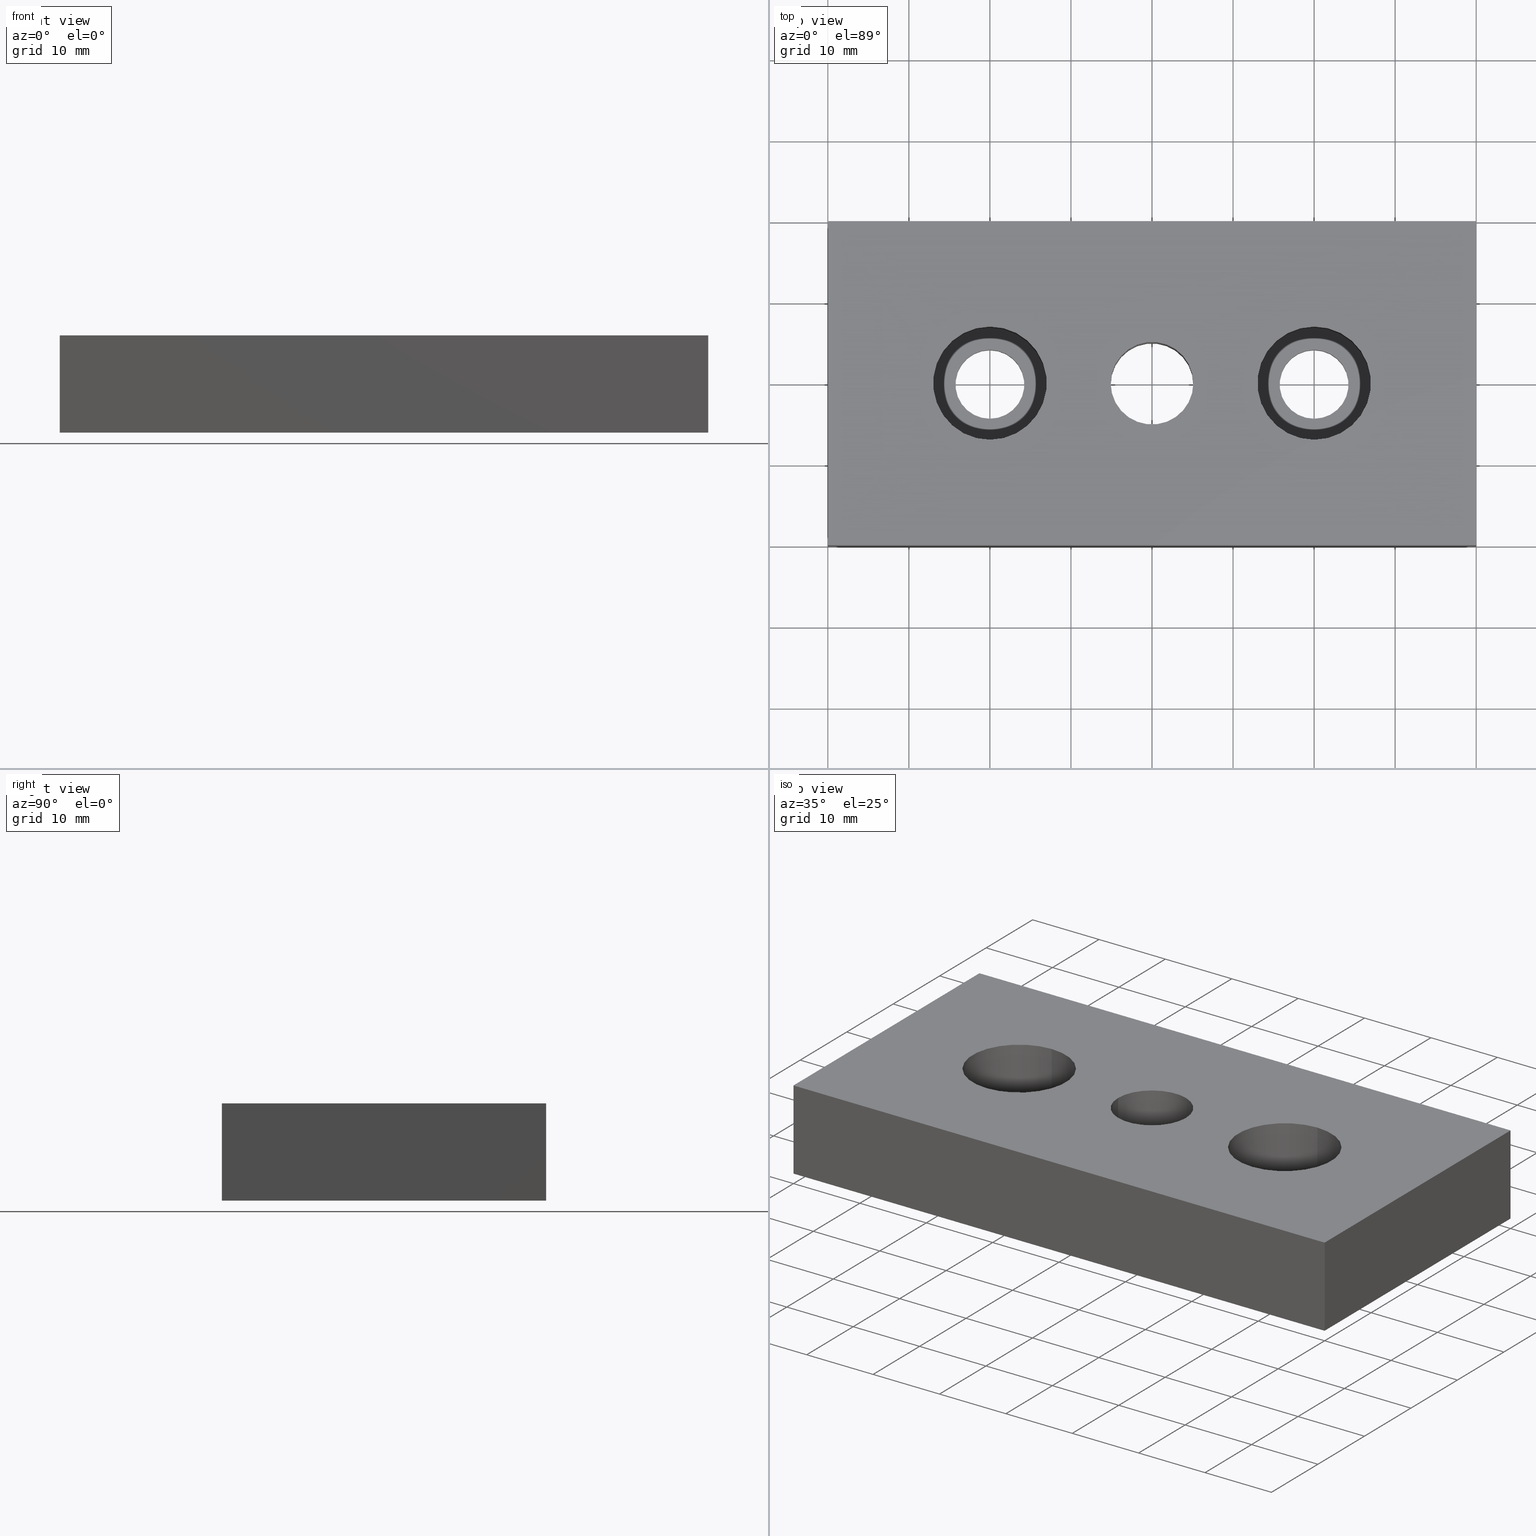
[diagram: canonical four-view strip — front | top / right | iso, engineering-drawing reading convention]
A machine part, canonical four-view strip (front | top / right | iso — engineering-drawing reading convention). The complete STEP part file that produces these views, byte-faithful:
ISO-10303-21;
HEADER;
/****************************************************************
 * Generated by software with PDE/Lib inside                    *
 * PDElib Version v4.4, created Mon 02/23/2004                  *
 * International Technegroup Inc. (www.iti-oh.com)              *
 ****************************************************************/
FILE_DESCRIPTION(('STEP AP203'),'2;1');
FILE_NAME('31.003.00.stp','2011-02-14T10:46:22',(''),(''),'2009.3.110','THINKDESIGN','');
FILE_SCHEMA(('CONFIG_CONTROL_DESIGN'));
ENDSEC;
DATA;
#2=CARTESIAN_POINT('',(-40.0,-7.105427E-015,-9.999994E-009));
#3=DIRECTION('',(0.0,0.0,1.0));
#4=DIRECTION('',(0.0,1.0,0.0));
#5=AXIS2_PLACEMENT_3D('',#2,#3,#4);
#6=CYLINDRICAL_SURFACE('',#5,5.100000000000000);
#7=CARTESIAN_POINT('',(-34.899999999999999,-8.881784E-015,3.552714E-015));
#8=VERTEX_POINT('',#7);
#9=CARTESIAN_POINT('',(-45.099999999999994,-8.881784E-015,3.552714E-015));
#10=VERTEX_POINT('',#9);
#11=CARTESIAN_POINT('',(-40.0,-8.881784E-015,3.552714E-015));
#12=DIRECTION('',(0.0,0.0,-1.0));
#13=DIRECTION('',(-1.0,0.0,0.0));
#14=AXIS2_PLACEMENT_3D('',#11,#12,#13);
#15=CIRCLE('',#14,5.100000000000001);
#16=EDGE_CURVE('',#8,#10,#15,.T.);
#17=ORIENTED_EDGE('',*,*,#16,.T.);
#18=CARTESIAN_POINT('',(-45.099999999999994,-8.881784E-015,12.0));
#19=VERTEX_POINT('',#18);
#20=CARTESIAN_POINT('',(-45.099999999999994,-8.881784E-015,0.0));
#21=DIRECTION('',(0.0,0.0,1.0));
#22=VECTOR('',#21,12.0);
#23=LINE('',#20,#22);
#24=EDGE_CURVE('',#10,#19,#23,.T.);
#25=ORIENTED_EDGE('',*,*,#24,.T.);
#26=CARTESIAN_POINT('',(-34.899999999999999,-8.881784E-015,12.0));
#27=VERTEX_POINT('',#26);
#28=CARTESIAN_POINT('',(-40.0,-8.881784E-015,12.0));
#29=DIRECTION('',(0.0,0.0,1.0));
#30=DIRECTION('',(-1.0,0.0,0.0));
#31=AXIS2_PLACEMENT_3D('',#28,#29,#30);
#32=CIRCLE('',#31,5.100000000000001);
#33=EDGE_CURVE('',#19,#27,#32,.T.);
#34=ORIENTED_EDGE('',*,*,#33,.T.);
#35=CARTESIAN_POINT('',(-34.899999999999999,-8.881784E-015,0.0));
#36=DIRECTION('',(0.0,0.0,1.0));
#37=VECTOR('',#36,12.0);
#38=LINE('',#35,#37);
#39=EDGE_CURVE('',#8,#27,#38,.T.);
#40=ORIENTED_EDGE('',*,*,#39,.F.);
#41=EDGE_LOOP('',(#17,#25,#34,#40));
#42=FACE_OUTER_BOUND('',#41,.T.);
#43=ADVANCED_FACE('',(#42),#6,.F.);
#44=CARTESIAN_POINT('',(-60.0,-8.881784E-015,4.000000010000000));
#45=DIRECTION('',(0.0,0.0,-1.0));
#46=DIRECTION('',(-1.0,0.0,0.0));
#47=AXIS2_PLACEMENT_3D('',#44,#45,#46);
#48=CYLINDRICAL_SURFACE('',#47,4.250000000000000);
#49=CARTESIAN_POINT('',(-60.0,4.249999999999991,4.0));
#50=VERTEX_POINT('',#49);
#51=CARTESIAN_POINT('',(-60.0,-4.250000000000009,4.0));
#52=VERTEX_POINT('',#51);
#53=CARTESIAN_POINT('',(-60.0,-8.881784E-015,4.0));
#54=DIRECTION('',(0.0,0.0,-1.0));
#55=DIRECTION('',(-1.0,0.0,0.0));
#56=AXIS2_PLACEMENT_3D('',#53,#54,#55);
#57=CIRCLE('',#56,4.249999999999997);
#58=EDGE_CURVE('',#50,#52,#57,.T.);
#59=ORIENTED_EDGE('',*,*,#58,.F.);
#60=CARTESIAN_POINT('',(-60.0,4.249999999999991,0.0));
#61=VERTEX_POINT('',#60);
#62=CARTESIAN_POINT('',(-60.0,4.249999999999991,4.0));
#63=DIRECTION('',(0.0,0.0,-1.0));
#64=VECTOR('',#63,4.0);
#65=LINE('',#62,#64);
#66=EDGE_CURVE('',#50,#61,#65,.T.);
#67=ORIENTED_EDGE('',*,*,#66,.T.);
#68=CARTESIAN_POINT('',(-60.0,-4.250000000000009,0.0));
#69=VERTEX_POINT('',#68);
#70=CARTESIAN_POINT('',(-60.0,-8.881784E-015,0.0));
#71=DIRECTION('',(0.0,0.0,-1.0));
#72=DIRECTION('',(-1.0,0.0,0.0));
#73=AXIS2_PLACEMENT_3D('',#70,#71,#72);
#74=CIRCLE('',#73,4.249999999999997);
#75=EDGE_CURVE('',#61,#69,#74,.T.);
#76=ORIENTED_EDGE('',*,*,#75,.T.);
#77=CARTESIAN_POINT('',(-60.0,-4.250000000000009,4.0));
#78=DIRECTION('',(0.0,0.0,-1.0));
#79=VECTOR('',#78,4.0);
#80=LINE('',#77,#79);
#81=EDGE_CURVE('',#52,#69,#80,.T.);
#82=ORIENTED_EDGE('',*,*,#81,.F.);
#83=EDGE_LOOP('',(#59,#67,#76,#82));
#84=FACE_OUTER_BOUND('',#83,.T.);
#85=ADVANCED_FACE('',(#84),#48,.F.);
#86=CARTESIAN_POINT('',(-59.999999999999986,-8.881784E-015,12.000000010000001));
#87=DIRECTION('',(0.0,0.0,-1.0));
#88=DIRECTION('',(-1.0,0.0,0.0));
#89=AXIS2_PLACEMENT_3D('',#86,#87,#88);
#90=CYLINDRICAL_SURFACE('',#89,6.999999999999997);
#91=CARTESIAN_POINT('',(-59.999999999999993,6.999999999999991,12.0));
#92=VERTEX_POINT('',#91);
#93=CARTESIAN_POINT('',(-59.999999999999993,-7.000000000000007,12.0));
#94=VERTEX_POINT('',#93);
#95=CARTESIAN_POINT('',(-59.999999999999993,-8.881784E-015,12.0));
#96=DIRECTION('',(0.0,0.0,-1.0));
#97=DIRECTION('',(0.0,-1.0,0.0));
#98=AXIS2_PLACEMENT_3D('',#95,#96,#97);
#99=CIRCLE('',#98,6.999999999999997);
#100=EDGE_CURVE('',#92,#94,#99,.T.);
#101=ORIENTED_EDGE('',*,*,#100,.F.);
#102=CARTESIAN_POINT('',(-59.999999999999993,6.999999999999991,4.0));
#103=VERTEX_POINT('',#102);
#104=CARTESIAN_POINT('',(-59.999999999999993,6.999999999999991,12.0));
#105=DIRECTION('',(0.0,0.0,-1.0));
#106=VECTOR('',#105,8.0);
#107=LINE('',#104,#106);
#108=EDGE_CURVE('',#92,#103,#107,.T.);
#109=ORIENTED_EDGE('',*,*,#108,.T.);
#110=CARTESIAN_POINT('',(-59.999999999999993,-7.000000000000007,4.0));
#111=VERTEX_POINT('',#110);
#112=CARTESIAN_POINT('',(-59.999999999999993,-8.881784E-015,4.0));
#113=DIRECTION('',(0.0,0.0,1.0));
#114=DIRECTION('',(0.0,-1.0,0.0));
#115=AXIS2_PLACEMENT_3D('',#112,#113,#114);
#116=CIRCLE('',#115,6.999999999999997);
#117=EDGE_CURVE('',#111,#103,#116,.T.);
#118=ORIENTED_EDGE('',*,*,#117,.F.);
#119=CARTESIAN_POINT('',(-59.999999999999993,-7.000000000000007,12.0));
#120=DIRECTION('',(0.0,0.0,-1.0));
#121=VECTOR('',#120,8.0);
#122=LINE('',#119,#121);
#123=EDGE_CURVE('',#94,#111,#122,.T.);
#124=ORIENTED_EDGE('',*,*,#123,.F.);
#125=EDGE_LOOP('',(#101,#109,#118,#124));
#126=FACE_OUTER_BOUND('',#125,.T.);
#127=ADVANCED_FACE('',(#126),#90,.F.);
#128=CARTESIAN_POINT('',(-19.999999999999996,-7.105427E-015,4.000000010000000));
#129=DIRECTION('',(0.0,0.0,-1.0));
#130=DIRECTION('',(-1.0,0.0,0.0));
#131=AXIS2_PLACEMENT_3D('',#128,#129,#130);
#132=CYLINDRICAL_SURFACE('',#131,4.250000000000000);
#133=CARTESIAN_POINT('',(-19.999999999999996,4.249999999999991,4.0));
#134=VERTEX_POINT('',#133);
#135=CARTESIAN_POINT('',(-19.999999999999996,-4.250000000000009,4.0));
#136=VERTEX_POINT('',#135);
#137=CARTESIAN_POINT('',(-19.999999999999996,-8.881784E-015,4.0));
#138=DIRECTION('',(0.0,0.0,-1.0));
#139=DIRECTION('',(-1.0,0.0,0.0));
#140=AXIS2_PLACEMENT_3D('',#137,#138,#139);
#141=CIRCLE('',#140,4.250000000000000);
#142=EDGE_CURVE('',#134,#136,#141,.T.);
#143=ORIENTED_EDGE('',*,*,#142,.F.);
#144=CARTESIAN_POINT('',(-19.999999999999996,4.249999999999991,0.0));
#145=VERTEX_POINT('',#144);
#146=CARTESIAN_POINT('',(-19.999999999999996,4.249999999999991,4.0));
#147=DIRECTION('',(0.0,0.0,-1.0));
#148=VECTOR('',#147,4.0);
#149=LINE('',#146,#148);
#150=EDGE_CURVE('',#134,#145,#149,.T.);
#151=ORIENTED_EDGE('',*,*,#150,.T.);
#152=CARTESIAN_POINT('',(-19.999999999999996,-4.250000000000009,0.0));
#153=VERTEX_POINT('',#152);
#154=CARTESIAN_POINT('',(-19.999999999999996,-8.881784E-015,0.0));
#155=DIRECTION('',(0.0,0.0,-1.0));
#156=DIRECTION('',(-1.0,0.0,0.0));
#157=AXIS2_PLACEMENT_3D('',#154,#155,#156);
#158=CIRCLE('',#157,4.250000000000000);
#159=EDGE_CURVE('',#145,#153,#158,.T.);
#160=ORIENTED_EDGE('',*,*,#159,.T.);
#161=CARTESIAN_POINT('',(-19.999999999999996,-4.250000000000009,4.0));
#162=DIRECTION('',(0.0,0.0,-1.0));
#163=VECTOR('',#162,4.0);
#164=LINE('',#161,#163);
#165=EDGE_CURVE('',#136,#153,#164,.T.);
#166=ORIENTED_EDGE('',*,*,#165,.F.);
#167=EDGE_LOOP('',(#143,#151,#160,#166));
#168=FACE_OUTER_BOUND('',#167,.T.);
#169=ADVANCED_FACE('',(#168),#132,.F.);
#170=CARTESIAN_POINT('',(-19.999999999999996,-7.105427E-015,12.000000010000001));
#171=DIRECTION('',(0.0,0.0,-1.0));
#172=DIRECTION('',(-1.0,0.0,0.0));
#173=AXIS2_PLACEMENT_3D('',#170,#171,#172);
#174=CYLINDRICAL_SURFACE('',#173,6.999999999999997);
#175=CARTESIAN_POINT('',(-19.999999999999996,6.999999999999991,12.0));
#176=VERTEX_POINT('',#175);
#177=CARTESIAN_POINT('',(-19.999999999999996,-7.000000000000007,12.0));
#178=VERTEX_POINT('',#177);
#179=CARTESIAN_POINT('',(-19.999999999999996,-8.881784E-015,12.0));
#180=DIRECTION('',(0.0,0.0,-1.0));
#181=DIRECTION('',(0.0,-1.0,0.0));
#182=AXIS2_PLACEMENT_3D('',#179,#180,#181);
#183=CIRCLE('',#182,6.999999999999997);
#184=EDGE_CURVE('',#176,#178,#183,.T.);
#185=ORIENTED_EDGE('',*,*,#184,.F.);
#186=CARTESIAN_POINT('',(-19.999999999999996,6.999999999999991,4.0));
#187=VERTEX_POINT('',#186);
#188=CARTESIAN_POINT('',(-19.999999999999996,6.999999999999991,12.0));
#189=DIRECTION('',(0.0,0.0,-1.0));
#190=VECTOR('',#189,8.0);
#191=LINE('',#188,#190);
#192=EDGE_CURVE('',#176,#187,#191,.T.);
#193=ORIENTED_EDGE('',*,*,#192,.T.);
#194=CARTESIAN_POINT('',(-19.999999999999996,-7.000000000000007,4.0));
#195=VERTEX_POINT('',#194);
#196=CARTESIAN_POINT('',(-19.999999999999996,-8.881784E-015,4.0));
#197=DIRECTION('',(0.0,0.0,1.0));
#198=DIRECTION('',(0.0,-1.0,0.0));
#199=AXIS2_PLACEMENT_3D('',#196,#197,#198);
#200=CIRCLE('',#199,6.999999999999997);
#201=EDGE_CURVE('',#195,#187,#200,.T.);
#202=ORIENTED_EDGE('',*,*,#201,.F.);
#203=CARTESIAN_POINT('',(-19.999999999999996,-7.000000000000007,12.0));
#204=DIRECTION('',(0.0,0.0,-1.0));
#205=VECTOR('',#204,8.0);
#206=LINE('',#203,#205);
#207=EDGE_CURVE('',#178,#195,#206,.T.);
#208=ORIENTED_EDGE('',*,*,#207,.F.);
#209=EDGE_LOOP('',(#185,#193,#202,#208));
#210=FACE_OUTER_BOUND('',#209,.T.);
#211=ADVANCED_FACE('',(#210),#174,.F.);
#212=CARTESIAN_POINT('',(-80.0,-22.000000000000007,-0.600000000000000));
#213=DIRECTION('',(-1.0,0.0,0.0));
#214=DIRECTION('',(0.0,0.0,1.0));
#215=AXIS2_PLACEMENT_3D('',#212,#213,#214);
#216=PLANE('',#215);
#217=CARTESIAN_POINT('',(-80.0,20.000000000000007,12.0));
#218=VERTEX_POINT('',#217);
#219=CARTESIAN_POINT('',(-80.0,-20.000000000000007,12.0));
#220=VERTEX_POINT('',#219);
#221=CARTESIAN_POINT('',(-80.0,20.000000000000007,12.0));
#222=DIRECTION('',(0.0,-1.0,0.0));
#223=VECTOR('',#222,40.000000000000014);
#224=LINE('',#221,#223);
#225=EDGE_CURVE('',#218,#220,#224,.T.);
#226=ORIENTED_EDGE('',*,*,#225,.F.);
#227=CARTESIAN_POINT('',(-80.0,20.000000000000007,0.0));
#228=VERTEX_POINT('',#227);
#229=CARTESIAN_POINT('',(-80.0,20.000000000000007,0.0));
#230=DIRECTION('',(0.0,0.0,1.0));
#231=VECTOR('',#230,12.0);
#232=LINE('',#229,#231);
#233=EDGE_CURVE('',#228,#218,#232,.T.);
#234=ORIENTED_EDGE('',*,*,#233,.F.);
#235=CARTESIAN_POINT('',(-80.0,-20.000000000000007,0.0));
#236=VERTEX_POINT('',#235);
#237=CARTESIAN_POINT('',(-80.0,20.000000000000007,0.0));
#238=DIRECTION('',(0.0,-1.0,0.0));
#239=VECTOR('',#238,40.000000000000014);
#240=LINE('',#237,#239);
#241=EDGE_CURVE('',#228,#236,#240,.T.);
#242=ORIENTED_EDGE('',*,*,#241,.T.);
#243=CARTESIAN_POINT('',(-80.0,-20.000000000000007,0.0));
#244=DIRECTION('',(0.0,0.0,1.0));
#245=VECTOR('',#244,12.0);
#246=LINE('',#243,#245);
#247=EDGE_CURVE('',#236,#220,#246,.T.);
#248=ORIENTED_EDGE('',*,*,#247,.T.);
#249=EDGE_LOOP('',(#226,#234,#242,#248));
#250=FACE_OUTER_BOUND('',#249,.T.);
#251=ADVANCED_FACE('',(#250),#216,.T.);
#252=CARTESIAN_POINT('',(-84.0,-20.000000000000007,-0.600000000000000));
#253=DIRECTION('',(0.0,-1.0,0.0));
#254=DIRECTION('',(1.0,0.0,0.0));
#255=AXIS2_PLACEMENT_3D('',#252,#253,#254);
#256=PLANE('',#255);
#257=CARTESIAN_POINT('',(7.105427E-015,-20.000000000000004,12.0));
#258=VERTEX_POINT('',#257);
#259=CARTESIAN_POINT('',(-80.0,-20.000000000000007,12.0));
#260=DIRECTION('',(1.0,0.0,0.0));
#261=VECTOR('',#260,80.0);
#262=LINE('',#259,#261);
#263=EDGE_CURVE('',#220,#258,#262,.T.);
#264=ORIENTED_EDGE('',*,*,#263,.F.);
#265=ORIENTED_EDGE('',*,*,#247,.F.);
#266=CARTESIAN_POINT('',(7.105427E-015,-20.000000000000004,0.0));
#267=VERTEX_POINT('',#266);
#268=CARTESIAN_POINT('',(-80.0,-20.000000000000007,0.0));
#269=DIRECTION('',(1.0,0.0,0.0));
#270=VECTOR('',#269,80.0);
#271=LINE('',#268,#270);
#272=EDGE_CURVE('',#236,#267,#271,.T.);
#273=ORIENTED_EDGE('',*,*,#272,.T.);
#274=CARTESIAN_POINT('',(7.105427E-015,-20.000000000000004,0.0));
#275=DIRECTION('',(0.0,0.0,1.0));
#276=VECTOR('',#275,12.0);
#277=LINE('',#274,#276);
#278=EDGE_CURVE('',#267,#258,#277,.T.);
#279=ORIENTED_EDGE('',*,*,#278,.T.);
#280=EDGE_LOOP('',(#264,#265,#273,#279));
#281=FACE_OUTER_BOUND('',#280,.T.);
#282=ADVANCED_FACE('',(#281),#256,.T.);
#283=CARTESIAN_POINT('',(0.0,-22.000000000000004,12.600000000000000));
#284=DIRECTION('',(1.0,0.0,0.0));
#285=DIRECTION('',(0.0,0.0,-1.0));
#286=AXIS2_PLACEMENT_3D('',#283,#284,#285);
#287=PLANE('',#286);
#288=CARTESIAN_POINT('',(0.0,20.000000000000007,12.0));
#289=VERTEX_POINT('',#288);
#290=CARTESIAN_POINT('',(0.0,-20.000000000000004,12.0));
#291=DIRECTION('',(0.0,1.0,0.0));
#292=VECTOR('',#291,40.000000000000007);
#293=LINE('',#290,#292);
#294=EDGE_CURVE('',#258,#289,#293,.T.);
#295=ORIENTED_EDGE('',*,*,#294,.F.);
#296=ORIENTED_EDGE('',*,*,#278,.F.);
#297=CARTESIAN_POINT('',(0.0,20.000000000000007,0.0));
#298=VERTEX_POINT('',#297);
#299=CARTESIAN_POINT('',(0.0,-20.000000000000004,0.0));
#300=DIRECTION('',(0.0,1.0,0.0));
#301=VECTOR('',#300,40.000000000000007);
#302=LINE('',#299,#301);
#303=EDGE_CURVE('',#267,#298,#302,.T.);
#304=ORIENTED_EDGE('',*,*,#303,.T.);
#305=CARTESIAN_POINT('',(0.0,20.000000000000007,0.0));
#306=DIRECTION('',(0.0,0.0,1.0));
#307=VECTOR('',#306,12.0);
#308=LINE('',#305,#307);
#309=EDGE_CURVE('',#298,#289,#308,.T.);
#310=ORIENTED_EDGE('',*,*,#309,.T.);
#311=EDGE_LOOP('',(#295,#296,#304,#310));
#312=FACE_OUTER_BOUND('',#311,.T.);
#313=ADVANCED_FACE('',(#312),#287,.T.);
#314=CARTESIAN_POINT('',(-84.0,20.000000000000007,-0.600000000000000));
#315=DIRECTION('',(0.0,1.0,0.0));
#316=DIRECTION('',(0.0,0.0,1.0));
#317=AXIS2_PLACEMENT_3D('',#314,#315,#316);
#318=PLANE('',#317);
#319=CARTESIAN_POINT('',(0.0,20.000000000000007,12.0));
#320=DIRECTION('',(-1.0,0.0,0.0));
#321=VECTOR('',#320,80.0);
#322=LINE('',#319,#321);
#323=EDGE_CURVE('',#289,#218,#322,.T.);
#324=ORIENTED_EDGE('',*,*,#323,.F.);
#325=ORIENTED_EDGE('',*,*,#309,.F.);
#326=CARTESIAN_POINT('',(0.0,20.000000000000007,0.0));
#327=DIRECTION('',(-1.0,0.0,0.0));
#328=VECTOR('',#327,80.0);
#329=LINE('',#326,#328);
#330=EDGE_CURVE('',#298,#228,#329,.T.);
#331=ORIENTED_EDGE('',*,*,#330,.T.);
#332=ORIENTED_EDGE('',*,*,#233,.T.);
#333=EDGE_LOOP('',(#324,#325,#331,#332));
#334=FACE_OUTER_BOUND('',#333,.T.);
#335=ADVANCED_FACE('',(#334),#318,.T.);
#336=CARTESIAN_POINT('',(4.000000000000004,-22.000000000000007,0.0));
#337=DIRECTION('',(0.0,0.0,-1.0));
#338=DIRECTION('',(-1.0,0.0,0.0));
#339=AXIS2_PLACEMENT_3D('',#336,#337,#338);
#340=PLANE('',#339);
#341=ORIENTED_EDGE('',*,*,#241,.F.);
#342=ORIENTED_EDGE('',*,*,#330,.F.);
#343=ORIENTED_EDGE('',*,*,#303,.F.);
#344=ORIENTED_EDGE('',*,*,#272,.F.);
#345=EDGE_LOOP('',(#341,#342,#343,#344));
#346=FACE_OUTER_BOUND('',#345,.T.);
#347=CARTESIAN_POINT('',(-60.0,-8.881784E-015,0.0));
#348=DIRECTION('',(0.0,0.0,-1.0));
#349=DIRECTION('',(-1.0,0.0,0.0));
#350=AXIS2_PLACEMENT_3D('',#347,#348,#349);
#351=CIRCLE('',#350,4.249999999999997);
#352=EDGE_CURVE('',#69,#61,#351,.T.);
#353=ORIENTED_EDGE('',*,*,#352,.F.);
#354=ORIENTED_EDGE('',*,*,#75,.F.);
#355=EDGE_LOOP('',(#353,#354));
#356=FACE_BOUND('',#355,.T.);
#357=CARTESIAN_POINT('',(-19.999999999999996,-8.881784E-015,0.0));
#358=DIRECTION('',(0.0,0.0,-1.0));
#359=DIRECTION('',(-1.0,0.0,0.0));
#360=AXIS2_PLACEMENT_3D('',#357,#358,#359);
#361=CIRCLE('',#360,4.250000000000000);
#362=EDGE_CURVE('',#153,#145,#361,.T.);
#363=ORIENTED_EDGE('',*,*,#362,.F.);
#364=ORIENTED_EDGE('',*,*,#159,.F.);
#365=EDGE_LOOP('',(#363,#364));
#366=FACE_BOUND('',#365,.T.);
#367=ORIENTED_EDGE('',*,*,#16,.F.);
#368=CARTESIAN_POINT('',(-40.0,-8.881784E-015,3.552714E-015));
#369=DIRECTION('',(0.0,0.0,-1.0));
#370=DIRECTION('',(-1.0,0.0,0.0));
#371=AXIS2_PLACEMENT_3D('',#368,#369,#370);
#372=CIRCLE('',#371,5.100000000000001);
#373=EDGE_CURVE('',#10,#8,#372,.T.);
#374=ORIENTED_EDGE('',*,*,#373,.F.);
#375=EDGE_LOOP('',(#367,#374));
#376=FACE_BOUND('',#375,.T.);
#377=ADVANCED_FACE('',(#346,#356,#366,#376),#340,.T.);
#378=CARTESIAN_POINT('',(4.000000000000004,-22.000000000000007,12.0));
#379=DIRECTION('',(0.0,0.0,-1.0));
#380=DIRECTION('',(-1.0,0.0,0.0));
#381=AXIS2_PLACEMENT_3D('',#378,#379,#380);
#382=PLANE('',#381);
#383=ORIENTED_EDGE('',*,*,#225,.T.);
#384=ORIENTED_EDGE('',*,*,#263,.T.);
#385=ORIENTED_EDGE('',*,*,#294,.T.);
#386=ORIENTED_EDGE('',*,*,#323,.T.);
#387=EDGE_LOOP('',(#383,#384,#385,#386));
#388=FACE_OUTER_BOUND('',#387,.T.);
#389=CARTESIAN_POINT('',(-59.999999999999993,-8.881784E-015,12.0));
#390=DIRECTION('',(0.0,0.0,-1.0));
#391=DIRECTION('',(0.0,-1.0,0.0));
#392=AXIS2_PLACEMENT_3D('',#389,#390,#391);
#393=CIRCLE('',#392,6.999999999999997);
#394=EDGE_CURVE('',#94,#92,#393,.T.);
#395=ORIENTED_EDGE('',*,*,#394,.T.);
#396=ORIENTED_EDGE('',*,*,#100,.T.);
#397=EDGE_LOOP('',(#395,#396));
#398=FACE_BOUND('',#397,.T.);
#399=CARTESIAN_POINT('',(-19.999999999999996,-8.881784E-015,12.0));
#400=DIRECTION('',(0.0,0.0,-1.0));
#401=DIRECTION('',(0.0,-1.0,0.0));
#402=AXIS2_PLACEMENT_3D('',#399,#400,#401);
#403=CIRCLE('',#402,6.999999999999997);
#404=EDGE_CURVE('',#178,#176,#403,.T.);
#405=ORIENTED_EDGE('',*,*,#404,.T.);
#406=ORIENTED_EDGE('',*,*,#184,.T.);
#407=EDGE_LOOP('',(#405,#406));
#408=FACE_BOUND('',#407,.T.);
#409=CARTESIAN_POINT('',(-40.0,-8.881784E-015,12.0));
#410=DIRECTION('',(0.0,0.0,1.0));
#411=DIRECTION('',(-1.0,0.0,0.0));
#412=AXIS2_PLACEMENT_3D('',#409,#410,#411);
#413=CIRCLE('',#412,5.100000000000001);
#414=EDGE_CURVE('',#27,#19,#413,.T.);
#415=ORIENTED_EDGE('',*,*,#414,.F.);
#416=ORIENTED_EDGE('',*,*,#33,.F.);
#417=EDGE_LOOP('',(#415,#416));
#418=FACE_BOUND('',#417,.T.);
#419=ADVANCED_FACE('',(#388,#398,#408,#418),#382,.F.);
#420=CARTESIAN_POINT('',(-12.300000000000001,-7.700000000000008,4.0));
#421=DIRECTION('',(0.0,0.0,-1.0));
#422=DIRECTION('',(-1.0,0.0,0.0));
#423=AXIS2_PLACEMENT_3D('',#420,#421,#422);
#424=PLANE('',#423);
#425=ORIENTED_EDGE('',*,*,#201,.T.);
#426=CARTESIAN_POINT('',(-19.999999999999996,-8.881784E-015,4.0));
#427=DIRECTION('',(0.0,0.0,1.0));
#428=DIRECTION('',(0.0,-1.0,0.0));
#429=AXIS2_PLACEMENT_3D('',#426,#427,#428);
#430=CIRCLE('',#429,6.999999999999997);
#431=EDGE_CURVE('',#187,#195,#430,.T.);
#432=ORIENTED_EDGE('',*,*,#431,.T.);
#433=EDGE_LOOP('',(#425,#432));
#434=FACE_OUTER_BOUND('',#433,.T.);
#435=CARTESIAN_POINT('',(-19.999999999999996,-8.881784E-015,4.0));
#436=DIRECTION('',(0.0,0.0,-1.0));
#437=DIRECTION('',(-1.0,0.0,0.0));
#438=AXIS2_PLACEMENT_3D('',#435,#436,#437);
#439=CIRCLE('',#438,4.250000000000000);
#440=EDGE_CURVE('',#136,#134,#439,.T.);
#441=ORIENTED_EDGE('',*,*,#440,.T.);
#442=ORIENTED_EDGE('',*,*,#142,.T.);
#443=EDGE_LOOP('',(#441,#442));
#444=FACE_BOUND('',#443,.T.);
#445=ADVANCED_FACE('',(#434,#444),#424,.F.);
#446=CARTESIAN_POINT('',(-19.999999999999996,-8.881784E-015,12.000000010000001));
#447=DIRECTION('',(0.0,0.0,-1.0));
#448=DIRECTION('',(1.0,0.0,0.0));
#449=AXIS2_PLACEMENT_3D('',#446,#447,#448);
#450=CYLINDRICAL_SURFACE('',#449,6.999999999999997);
#451=ORIENTED_EDGE('',*,*,#192,.F.);
#452=ORIENTED_EDGE('',*,*,#404,.F.);
#453=ORIENTED_EDGE('',*,*,#207,.T.);
#454=ORIENTED_EDGE('',*,*,#431,.F.);
#455=EDGE_LOOP('',(#451,#452,#453,#454));
#456=FACE_OUTER_BOUND('',#455,.T.);
#457=ADVANCED_FACE('',(#456),#450,.F.);
#458=CARTESIAN_POINT('',(-19.999999999999996,-8.881784E-015,4.000000010000000));
#459=DIRECTION('',(0.0,0.0,-1.0));
#460=DIRECTION('',(1.0,0.0,0.0));
#461=AXIS2_PLACEMENT_3D('',#458,#459,#460);
#462=CYLINDRICAL_SURFACE('',#461,4.250000000000000);
#463=ORIENTED_EDGE('',*,*,#150,.F.);
#464=ORIENTED_EDGE('',*,*,#440,.F.);
#465=ORIENTED_EDGE('',*,*,#165,.T.);
#466=ORIENTED_EDGE('',*,*,#362,.T.);
#467=EDGE_LOOP('',(#463,#464,#465,#466));
#468=FACE_OUTER_BOUND('',#467,.T.);
#469=ADVANCED_FACE('',(#468),#462,.F.);
#470=CARTESIAN_POINT('',(-52.299999999999997,-7.700000000000008,4.0));
#471=DIRECTION('',(0.0,0.0,-1.0));
#472=DIRECTION('',(-1.0,0.0,0.0));
#473=AXIS2_PLACEMENT_3D('',#470,#471,#472);
#474=PLANE('',#473);
#475=ORIENTED_EDGE('',*,*,#117,.T.);
#476=CARTESIAN_POINT('',(-59.999999999999993,-8.881784E-015,4.0));
#477=DIRECTION('',(0.0,0.0,1.0));
#478=DIRECTION('',(0.0,-1.0,0.0));
#479=AXIS2_PLACEMENT_3D('',#476,#477,#478);
#480=CIRCLE('',#479,6.999999999999997);
#481=EDGE_CURVE('',#103,#111,#480,.T.);
#482=ORIENTED_EDGE('',*,*,#481,.T.);
#483=EDGE_LOOP('',(#475,#482));
#484=FACE_OUTER_BOUND('',#483,.T.);
#485=CARTESIAN_POINT('',(-60.0,-8.881784E-015,4.0));
#486=DIRECTION('',(0.0,0.0,-1.0));
#487=DIRECTION('',(-1.0,0.0,0.0));
#488=AXIS2_PLACEMENT_3D('',#485,#486,#487);
#489=CIRCLE('',#488,4.249999999999997);
#490=EDGE_CURVE('',#52,#50,#489,.T.);
#491=ORIENTED_EDGE('',*,*,#490,.T.);
#492=ORIENTED_EDGE('',*,*,#58,.T.);
#493=EDGE_LOOP('',(#491,#492));
#494=FACE_BOUND('',#493,.T.);
#495=ADVANCED_FACE('',(#484,#494),#474,.F.);
#496=CARTESIAN_POINT('',(-59.999999999999993,-5.329071E-015,12.000000010000001));
#497=DIRECTION('',(0.0,0.0,-1.0));
#498=DIRECTION('',(1.0,0.0,0.0));
#499=AXIS2_PLACEMENT_3D('',#496,#497,#498);
#500=CYLINDRICAL_SURFACE('',#499,6.999999999999997);
#501=ORIENTED_EDGE('',*,*,#108,.F.);
#502=ORIENTED_EDGE('',*,*,#394,.F.);
#503=ORIENTED_EDGE('',*,*,#123,.T.);
#504=ORIENTED_EDGE('',*,*,#481,.F.);
#505=EDGE_LOOP('',(#501,#502,#503,#504));
#506=FACE_OUTER_BOUND('',#505,.T.);
#507=ADVANCED_FACE('',(#506),#500,.F.);
#508=CARTESIAN_POINT('',(-60.0,-1.243450E-014,4.000000010000000));
#509=DIRECTION('',(0.0,0.0,-1.0));
#510=DIRECTION('',(1.0,0.0,0.0));
#511=AXIS2_PLACEMENT_3D('',#508,#509,#510);
#512=CYLINDRICAL_SURFACE('',#511,4.250000000000000);
#513=ORIENTED_EDGE('',*,*,#66,.F.);
#514=ORIENTED_EDGE('',*,*,#490,.F.);
#515=ORIENTED_EDGE('',*,*,#81,.T.);
#516=ORIENTED_EDGE('',*,*,#352,.T.);
#517=EDGE_LOOP('',(#513,#514,#515,#516));
#518=FACE_OUTER_BOUND('',#517,.T.);
#519=ADVANCED_FACE('',(#518),#512,.F.);
#520=CARTESIAN_POINT('',(-40.0,-8.881784E-015,-9.999994E-009));
#521=DIRECTION('',(0.0,0.0,1.0));
#522=DIRECTION('',(0.0,-1.0,0.0));
#523=AXIS2_PLACEMENT_3D('',#520,#521,#522);
#524=CYLINDRICAL_SURFACE('',#523,5.100000000000000);
#525=ORIENTED_EDGE('',*,*,#24,.F.);
#526=ORIENTED_EDGE('',*,*,#373,.T.);
#527=ORIENTED_EDGE('',*,*,#39,.T.);
#528=ORIENTED_EDGE('',*,*,#414,.T.);
#529=EDGE_LOOP('',(#525,#526,#527,#528));
#530=FACE_OUTER_BOUND('',#529,.T.);
#531=ADVANCED_FACE('',(#530),#524,.F.);
#532=CLOSED_SHELL('',(#43,#85,#127,#169,#211,#251,#282,#313,#335,#377,#419,#445,#457,#469,#495,#507,#519,#531));
#533=MANIFOLD_SOLID_BREP('Importato1',#532);
#539=(NAMED_UNIT(*)PLANE_ANGLE_UNIT()SI_UNIT($,.RADIAN.));
#540=DIMENSIONAL_EXPONENTS(0.0,0.0,0.0,0.0,0.0,0.0,0.0);
#541=PLANE_ANGLE_MEASURE_WITH_UNIT(PLANE_ANGLE_MEASURE(0.017453292500000),#539);
#545=(CONVERSION_BASED_UNIT('DEGREE',#541)NAMED_UNIT(#540)PLANE_ANGLE_UNIT());
#549=(NAMED_UNIT(*)SI_UNIT($,.STERADIAN.)SOLID_ANGLE_UNIT());
#553=(LENGTH_UNIT()NAMED_UNIT(*)SI_UNIT(.MILLI.,.METRE.));
#555=UNCERTAINTY_MEASURE_WITH_UNIT(LENGTH_MEASURE(0.001000000000000),#553,'DISTANCE_ACCURACY_VALUE','');
#557=(GEOMETRIC_REPRESENTATION_CONTEXT(3)GLOBAL_UNCERTAINTY_ASSIGNED_CONTEXT((#555))GLOBAL_UNIT_ASSIGNED_CONTEXT((#545,#549,#553))REPRESENTATION_CONTEXT('thinkdesign','2009.3.110'));
#558=ADVANCED_BREP_SHAPE_REPRESENTATION('',(#533),#557);
#559=APPLICATION_CONTEXT('configuration controlled 3D designs of mechanical parts and assemblies');
#560=APPLICATION_PROTOCOL_DEFINITION('International Standard','config_control_design',1995,#559);
#561=MECHANICAL_CONTEXT('None',#559,'mechanical');
#562=PRODUCT('None','None','None',(#561));
#563=PRODUCT_RELATED_PRODUCT_CATEGORY('detail',$,(#562));
#564=PRODUCT_CATEGORY('part',$);
#565=PRODUCT_CATEGORY_RELATIONSHIP('None','None',#564,#563);
#566=PERSON('PERSON1','None','None',$,$,$);
#567=ORGANIZATION('','None','None');
#568=PERSON_AND_ORGANIZATION(#566,#567);
#569=PERSON_AND_ORGANIZATION_ROLE('design_owner');
#570=CC_DESIGN_PERSON_AND_ORGANIZATION_ASSIGNMENT(#568,#569,(#562));
#571=PRODUCT_DEFINITION_FORMATION_WITH_SPECIFIED_SOURCE('None','None',#562,.NOT_KNOWN.);
#572=PERSON('PERSON2','None','None',$,$,$);
#573=ORGANIZATION('','None','None');
#574=PERSON_AND_ORGANIZATION(#572,#573);
#575=PERSON_AND_ORGANIZATION_ROLE('creator');
#576=CC_DESIGN_PERSON_AND_ORGANIZATION_ASSIGNMENT(#574,#575,(#571));
#577=PERSON('PERSON3','None','None',$,$,$);
#578=ORGANIZATION('','None','None');
#579=PERSON_AND_ORGANIZATION(#577,#578);
#580=PERSON_AND_ORGANIZATION_ROLE('part_supplier');
#581=CC_DESIGN_PERSON_AND_ORGANIZATION_ASSIGNMENT(#579,#580,(#571));
#582=APPROVAL_STATUS('approved');
#583=APPROVAL(#582,'None');
#584=PERSON('PERSON4','None','None',$,$,$);
#585=ORGANIZATION('','None','None');
#586=PERSON_AND_ORGANIZATION(#584,#585);
#587=APPROVAL_ROLE('None');
#588=APPROVAL_PERSON_ORGANIZATION(#586,#583,#587);
#589=CALENDAR_DATE(2011,14,2);
#590=COORDINATED_UNIVERSAL_TIME_OFFSET(0,0,.AHEAD.);
#591=LOCAL_TIME(10,46,22.0,#590);
#592=DATE_AND_TIME(#589,#591);
#593=APPROVAL_DATE_TIME(#592,#583);
#594=CC_DESIGN_APPROVAL(#583,(#571));
#595=SECURITY_CLASSIFICATION_LEVEL('unclassified');
#596=SECURITY_CLASSIFICATION('None','None',#595);
#597=CC_DESIGN_SECURITY_CLASSIFICATION(#596,(#571));
#598=APPROVAL_STATUS('approved');
#599=APPROVAL(#598,'None');
#600=PERSON('PERSON5','None','None',$,$,$);
#601=ORGANIZATION('','None','None');
#602=PERSON_AND_ORGANIZATION(#600,#601);
#603=APPROVAL_ROLE('None');
#604=APPROVAL_PERSON_ORGANIZATION(#602,#599,#603);
#605=CALENDAR_DATE(2011,14,2);
#606=COORDINATED_UNIVERSAL_TIME_OFFSET(0,0,.AHEAD.);
#607=LOCAL_TIME(10,46,22.0,#606);
#608=DATE_AND_TIME(#605,#607);
#609=APPROVAL_DATE_TIME(#608,#599);
#610=CC_DESIGN_APPROVAL(#599,(#596));
#611=PERSON('PERSON6','None','None',$,$,$);
#612=ORGANIZATION('','None','None');
#613=PERSON_AND_ORGANIZATION(#611,#612);
#614=PERSON_AND_ORGANIZATION_ROLE('classification_officer');
#615=CC_DESIGN_PERSON_AND_ORGANIZATION_ASSIGNMENT(#613,#614,(#596));
#616=DATE_TIME_ROLE('classification_date');
#617=CALENDAR_DATE(2011,14,2);
#618=COORDINATED_UNIVERSAL_TIME_OFFSET(0,0,.AHEAD.);
#619=LOCAL_TIME(10,46,22.0,#618);
#620=DATE_AND_TIME(#617,#619);
#621=CC_DESIGN_DATE_AND_TIME_ASSIGNMENT(#620,#616,(#596));
#622=DESIGN_CONTEXT('part definition',#559,'design');
#623=DOCUMENT_TYPE('cad_filename');
#624=DOCUMENT('None','None','None',#623);
#625=PRODUCT_DEFINITION_WITH_ASSOCIATED_DOCUMENTS('None','None',#571,#622,(#624));
#626=PERSON('PERSON7','None','None',$,$,$);
#627=ORGANIZATION('','None','None');
#628=PERSON_AND_ORGANIZATION(#626,#627);
#629=PERSON_AND_ORGANIZATION_ROLE('creator');
#630=CC_DESIGN_PERSON_AND_ORGANIZATION_ASSIGNMENT(#628,#629,(#625));
#631=DATE_TIME_ROLE('creation_date');
#632=CALENDAR_DATE(2011,14,2);
#633=COORDINATED_UNIVERSAL_TIME_OFFSET(0,0,.AHEAD.);
#634=LOCAL_TIME(10,46,22.0,#633);
#635=DATE_AND_TIME(#632,#634);
#636=CC_DESIGN_DATE_AND_TIME_ASSIGNMENT(#635,#631,(#625));
#637=APPROVAL_STATUS('approved');
#638=APPROVAL(#637,'None');
#639=PERSON('PERSON8','None','None',$,$,$);
#640=ORGANIZATION('','None','None');
#641=PERSON_AND_ORGANIZATION(#639,#640);
#642=APPROVAL_ROLE('None');
#643=APPROVAL_PERSON_ORGANIZATION(#641,#638,#642);
#644=CALENDAR_DATE(2011,14,2);
#645=COORDINATED_UNIVERSAL_TIME_OFFSET(0,0,.AHEAD.);
#646=LOCAL_TIME(10,46,22.0,#645);
#647=DATE_AND_TIME(#644,#646);
#648=APPROVAL_DATE_TIME(#647,#638);
#649=CC_DESIGN_APPROVAL(#638,(#625));
#650=PRODUCT_DEFINITION_SHAPE('None','None',#625);
#651=SHAPE_DEFINITION_REPRESENTATION(#650,#558);
#652=DIMENSIONAL_EXPONENTS(0.0,0.0,0.0,0.0,0.0,0.0,0.0);
#653=DIMENSIONAL_EXPONENTS(1.0,0.0,0.0,0.0,0.0,0.0,0.0);
ENDSEC;
END-ISO-10303-21;
